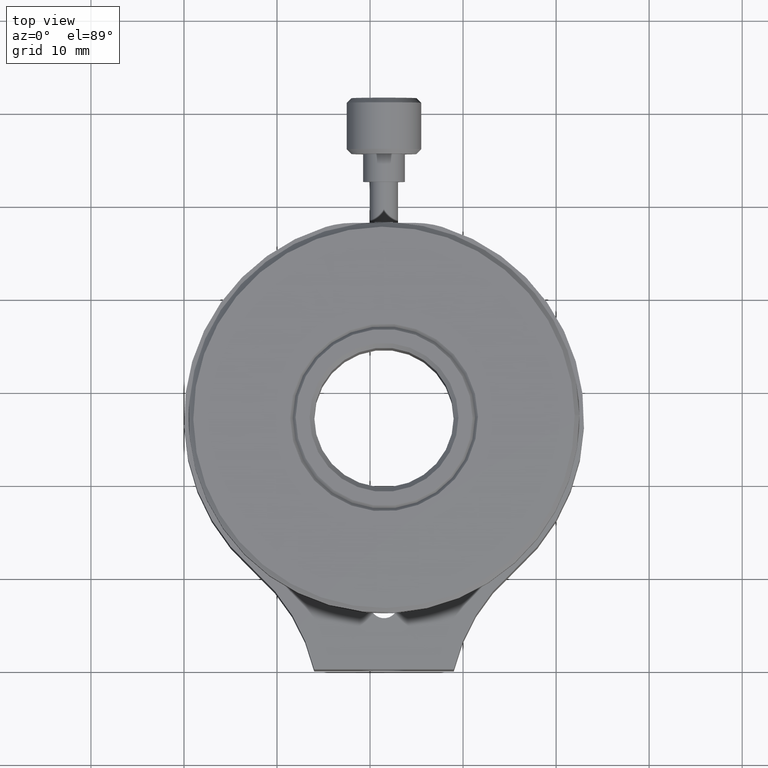
[diagram: clean part render]
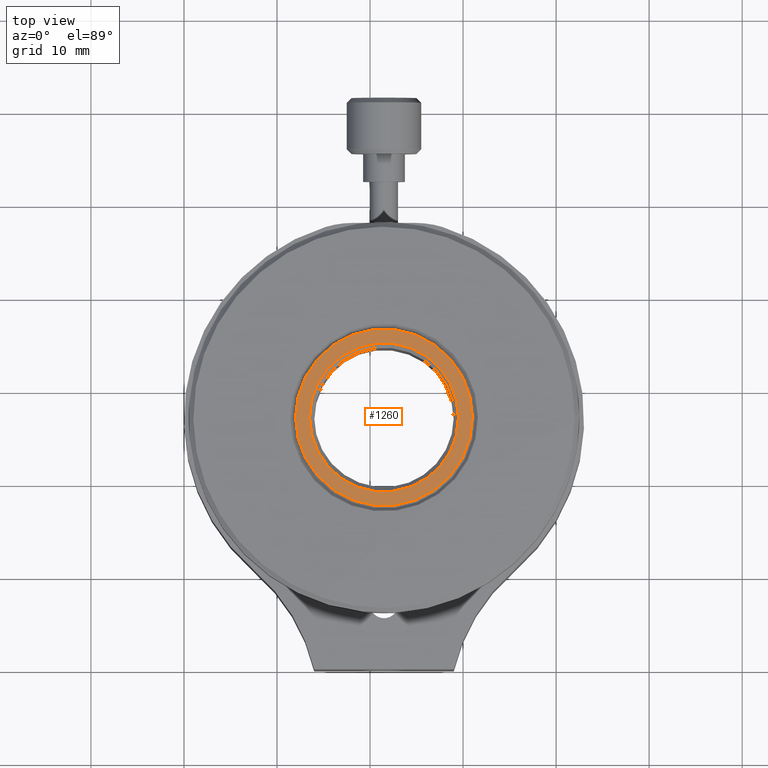
[diagram: same view with one face highlighted and labeled with its STEP entity id]
A machine part, top view. The second image highlights one B-rep face of the part: STEP entity #1260.
In plain terms, the highlighted planar face has unit normal (-0, 0, -1).
Its self-contained STEP definition (entity closure, byte-faithful):
#36=FACE_BOUND('',#249,.T.);
#69=PLANE('',#1394);
#158=FACE_OUTER_BOUND('',#248,.T.);
#248=EDGE_LOOP('',(#946));
#249=EDGE_LOOP('',(#947));
#432=CIRCLE('',#1391,9.5);
#434=CIRCLE('',#1395,8.);
#547=VERTEX_POINT('',#2528);
#549=VERTEX_POINT('',#2536);
#693=EDGE_CURVE('',#547,#547,#432,.T.);
#696=EDGE_CURVE('',#549,#549,#434,.T.);
#946=ORIENTED_EDGE('',*,*,#693,.F.);
#947=ORIENTED_EDGE('',*,*,#696,.F.);
#1260=ADVANCED_FACE('',(#158,#36),#69,.F.);
#1391=AXIS2_PLACEMENT_3D('',#2530,#1654,#1655);
#1394=AXIS2_PLACEMENT_3D('',#2535,#1661,#1662);
#1395=AXIS2_PLACEMENT_3D('',#2537,#1663,#1664);
#1654=DIRECTION('center_axis',(-7.63278329429804E-17,6.12323399573672E-17,
-1.));
#1655=DIRECTION('ref_axis',(-1.,-8.47033636166701E-18,7.63278329429804E-17));
#1661=DIRECTION('center_axis',(-7.63278329429804E-17,6.12323399573672E-17,
-1.));
#1662=DIRECTION('ref_axis',(-1.,-8.47033636166701E-18,7.63278329429804E-17));
#1663=DIRECTION('center_axis',(7.63278329429804E-17,-6.12323399573672E-17,
1.));
#1664=DIRECTION('ref_axis',(-1.,-8.47033636166701E-18,7.63278329429804E-17));
#2528=CARTESIAN_POINT('',(31.,27.,37.9988721972859));
#2530=CARTESIAN_POINT('Origin',(21.5,27.,37.9988721972859));
#2535=CARTESIAN_POINT('Origin',(21.5,27.,37.9988721972859));
#2536=CARTESIAN_POINT('',(29.5,27.,37.9988721972859));
#2537=CARTESIAN_POINT('Origin',(21.5,27.,37.9988721972859));